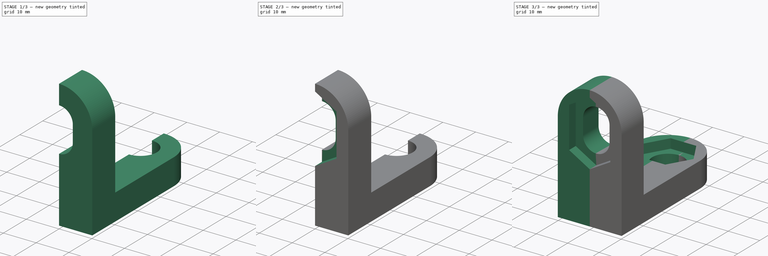
[diagram: build sequence overview — one tinted view per stage of 3, left to right]
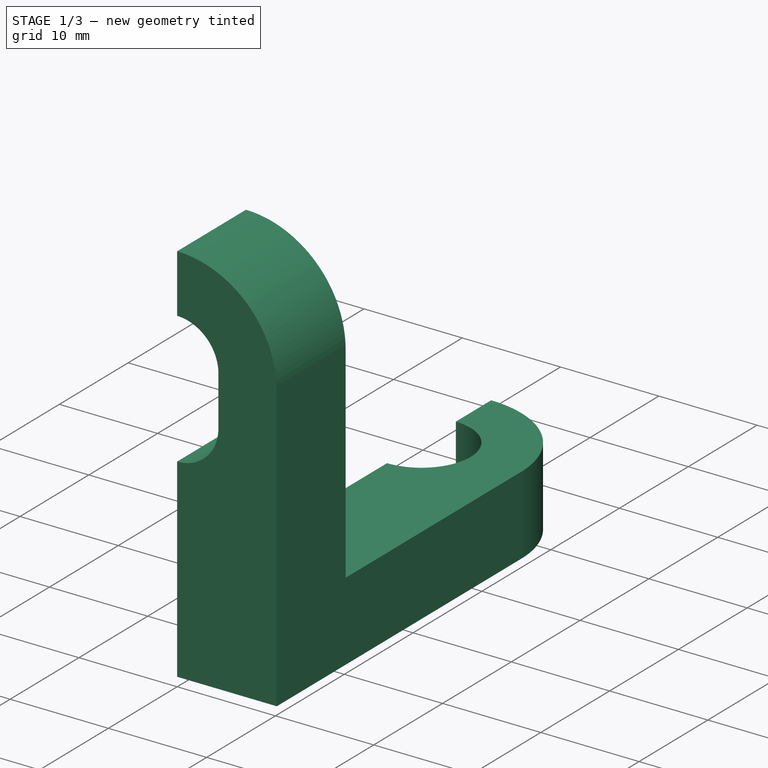
[diagram: stage 1 of 3 — iso view after this stage's code; geometry added in this stage tinted green]
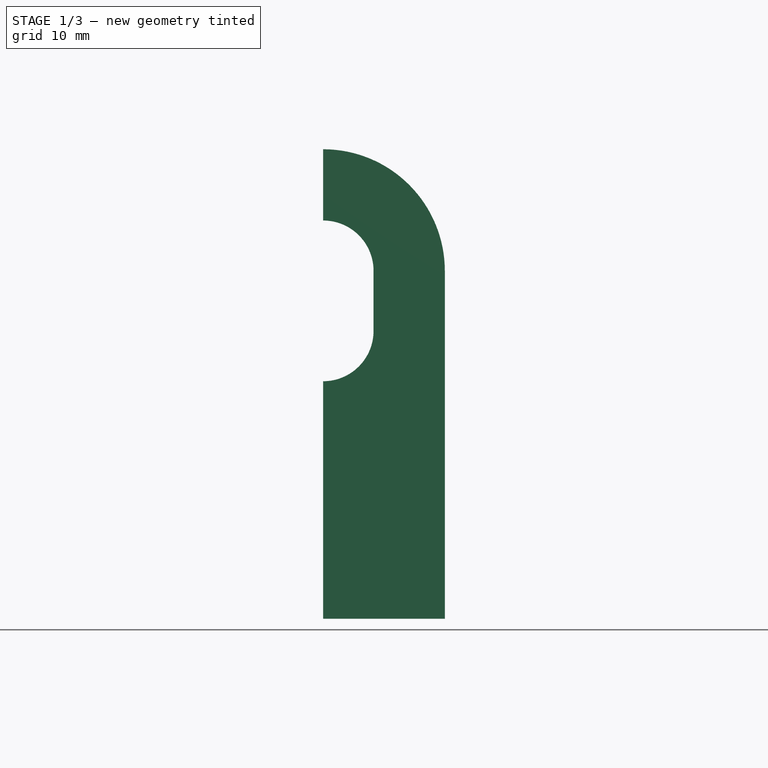
[diagram: stage 1 of 3 — front view after this stage's code; geometry added in this stage tinted green]
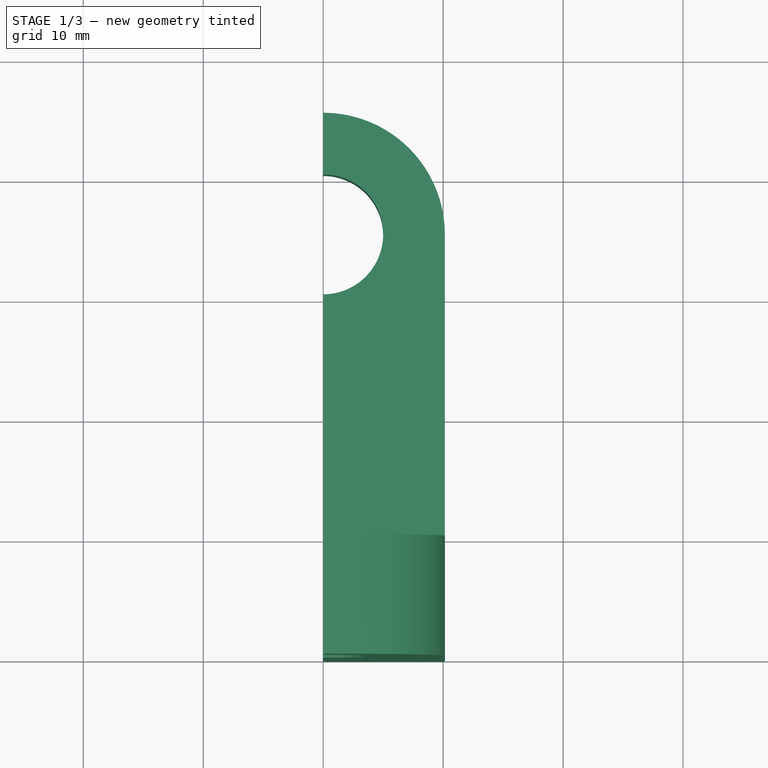
[diagram: stage 1 of 3 — top view after this stage's code; geometry added in this stage tinted green]
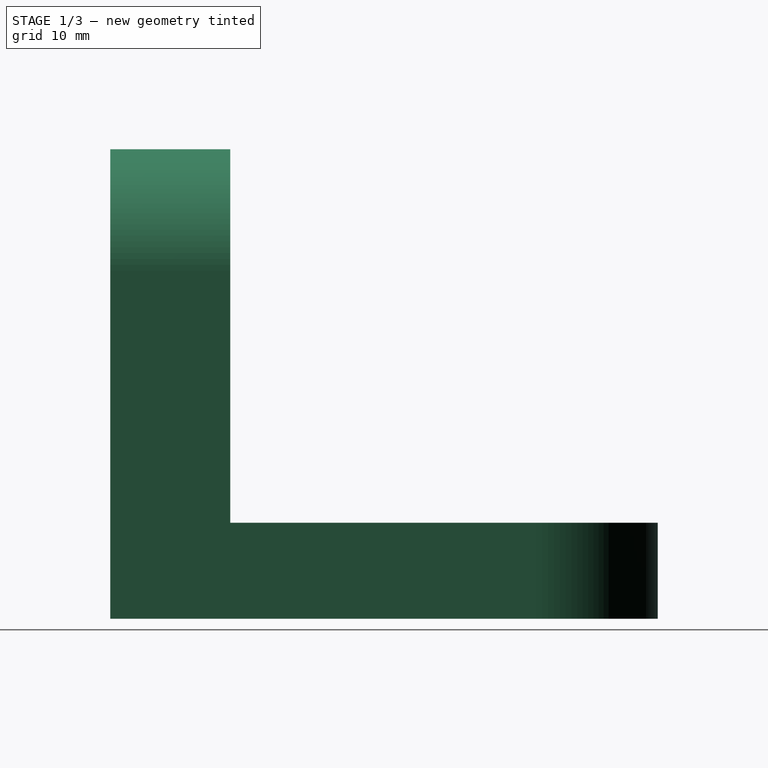
[diagram: stage 1 of 3 — right view after this stage's code; geometry added in this stage tinted green]
FCSTD DOCUMENT  (FreeCAD 0.19R24291 (Git))
Label: ДляПрисосок
License: All rights reserved
LicenseURL: http://en.wikipedia.org/wiki/All_rights_reserved
objects: Sketcher::SketchObject×4, PartDesign::Pad×2, PartDesign::Pocket×2, PartDesign::Mirrored×1, PartDesign::Body×1
note: 14 computed .brp shape members not serialized (recipe doc carries the construction recipe); baked Part::Feature solids carry a one-line shape summary decoded from their .brp

FEATURE [Sketcher::SketchObject] Sketch
  FullyConstrained = true
  MapMode = 5
  Support = -> [XY_Plane]
  sketch-geometry (13):
    g0: ArcOfCircle CenterX=0 CenterY=35.5 CenterZ=0 NormalX=0 NormalY=0 NormalZ=1 AngleXU=0 Radius=5 StartAngle=4.71239 EndAngle=7.85398
    g1: ArcOfCircle CenterX=0 CenterY=35.5 CenterZ=0 NormalX=0 NormalY=0 NormalZ=1 AngleXU=0 Radius=10.1406 StartAngle=6.28318 EndAngle=7.85398
    g2: LineSegment StartX=-9e-16 StartY=30.5 StartZ=0 EndX=0 EndY=0 EndZ=0
    g3: LineSegment StartX=10.1406 StartY=35.5 StartZ=0 EndX=10.1406 EndY=0 EndZ=0
    g4: LineSegment StartX=1.5e-15 StartY=40.5 StartZ=0 EndX=3.1e-15 EndY=45.6406 EndZ=0
    g5: LineSegment StartX=0 StartY=0 StartZ=0 EndX=10.1406 EndY=0 EndZ=0
    g6: LineSegment StartX=0 StartY=43.6406 StartZ=0 EndX=-7.05 EndY=39.5703 EndZ=0
    g7: LineSegment StartX=-7.05 StartY=39.5703 StartZ=0 EndX=-7.05 EndY=31.4297 EndZ=0
    g8: LineSegment StartX=-7.05 StartY=31.4297 StartZ=0 EndX=9e-16 EndY=27.3594 EndZ=0
    g9: LineSegment StartX=9e-16 StartY=27.3594 StartZ=0 EndX=7.05 EndY=31.4297 EndZ=0
    g10: LineSegment StartX=7.05 StartY=31.4297 StartZ=0 EndX=7.05 EndY=39.5703 EndZ=0
    g11: LineSegment StartX=7.05 StartY=39.5703 StartZ=0 EndX=0 EndY=43.6406 EndZ=0
    g12: Circle CenterX=0 CenterY=35.5 CenterZ=0 NormalX=0 NormalY=0 NormalZ=1 AngleXU=0 Radius=8.14064
  constraints (34):
    c: PointOnObject(g0,g-2)
    c: PointOnObject(g0,g-2)
    c: PointOnObject(g0,g-2)
    c: Coincident(g1,g0)
    c: PointOnObject(g1,g-2)
    c: Coincident(g2,g0)
    c: Coincident(g2,g-1)
    c: Coincident(g3,g1)
    c: PointOnObject(g3,g-1)
    c: Vertical(g3)
    c: Tangent(g3,g1)
    c: Coincident(g4,g0)
    c: Coincident(g4,g1)
    c: Coincident(g5,g2)
    c: Coincident(g5,g3)
    c: Coincident(g6,g7)
    c: Coincident(g7,g8)
    c: Coincident(g8,g9)
    c: Coincident(g9,g10)
    c: Coincident(g10,g11)
    c: Coincident(g11,g6)
    c: Equal(g6, g7-g11) x5
    c: PointOnObject(g6,g12)
    c: PointOnObject(g7,g12)
    c: PointOnObject(g8,g12)
    c: PointOnObject(g9,g12)
    c: PointOnObject(g10,g12)
    c: PointOnObject(g11,g12)
    c: Coincident(g12,g0)
    c: PointOnObject(g11,g4)
    c: Distance(g10,g6) = 14.1
    c: Distance(g6,g1) = 2
    c: Distance(g0,g-1) = 35.5
    c: Diameter(g0) = 10
FEATURE [PartDesign::Pad] Pad
  Direction = (1,1,1)
  Length = 8
  Length2 = 100
  Profile = -> Sketch
  Type = 0
FEATURE [Sketcher::SketchObject] Sketch001
  ExternalGeometry = -> [Pad]
  FullyConstrained = true
  MapMode = 5
  Placement = pos=(0,0,0) rot=(1,0,0;1.5708rad)
  Support = -> [Pad]
  sketch-geometry (9):
    g0: ArcOfCircle CenterX=0 CenterY=24 CenterZ=0 NormalX=0 NormalY=0 NormalZ=1 AngleXU=0 Radius=4.2 StartAngle=4.71239 EndAngle=7.85398
    g1: ArcOfCircle CenterX=0 CenterY=29 CenterZ=0 NormalX=0 NormalY=0 NormalZ=1 AngleXU=0 Radius=10.1406 StartAngle=6.28318 EndAngle=7.85398
    g2: LineSegment StartX=10.1406 StartY=8 StartZ=0 EndX=10.1406 EndY=29 EndZ=0
    g3: LineSegment StartX=3.1e-15 StartY=39.1406 StartZ=0 EndX=3e-16 EndY=33.2 EndZ=0
    g4: LineSegment StartX=-8e-16 StartY=19.8 StartZ=0 EndX=0 EndY=8 EndZ=0
    g5: LineSegment StartX=0 StartY=8 StartZ=0 EndX=10.1406 EndY=8 EndZ=0
    g6: ArcOfCircle CenterX=0 CenterY=24 CenterZ=0 NormalX=0 NormalY=0 NormalZ=1 AngleXU=0 Radius=4.2 StartAngle=4.71239 EndAngle=6.28318
    g7: LineSegment StartX=4.2 StartY=24 StartZ=0 EndX=4.2 EndY=29 EndZ=0
    g8: ArcOfCircle CenterX=0 CenterY=29 CenterZ=0 NormalX=0 NormalY=0 NormalZ=1 AngleXU=0 Radius=4.2 StartAngle=3.47299e-06 EndAngle=1.5708
  constraints (27):
    c: PointOnObject(g0,g-2)
    c: PointOnObject(g0,g-2)
    c: PointOnObject(g0,g-2)
    c: PointOnObject(g1,g-2)
    c: Coincident(g2,g-3)
    c: Coincident(g2,g1)
    c: Vertical(g2)
    c: Tangent(g2,g1)
    c: Coincident(g3,g1)
    c: Coincident(g4,g0)
    c: Coincident(g4,g-3)
    c: Coincident(g5,g4)
    c: Coincident(g5,g2)
    c: Diameter(g0) = 8.4
    c: Distance(g0,g-1) = 24
    c: Coincident(g6,g0)
    c: Coincident(g6,g4)
    c: Coincident(g7,g6)
    c: Tangent(g7,g0)
    c: Coincident(g8,g1)
    c: Coincident(g8,g7)
    c: Coincident(g8,g3)
    c: PointOnObject(g1,g-2)
    c: PointOnObject(g3,g-2)
    c: Tangent(g8,g7)
    c: Vertical(g7)
    c: Distance(g7) = 5
FEATURE [PartDesign::Pad] Pad001
  BaseFeature = -> Pad
  Direction = (1,1,1)
  Length = 10
  Length2 = 100
  Profile = -> Sketch001
  Reversed = true
  Type = 0
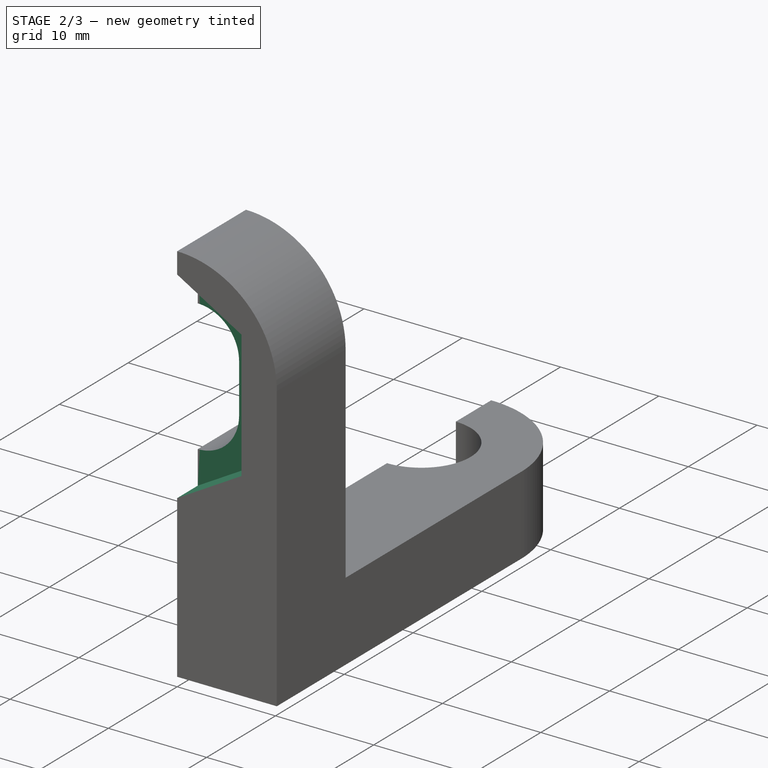
[diagram: stage 2 of 3 — iso view after this stage's code; geometry added in this stage tinted green]
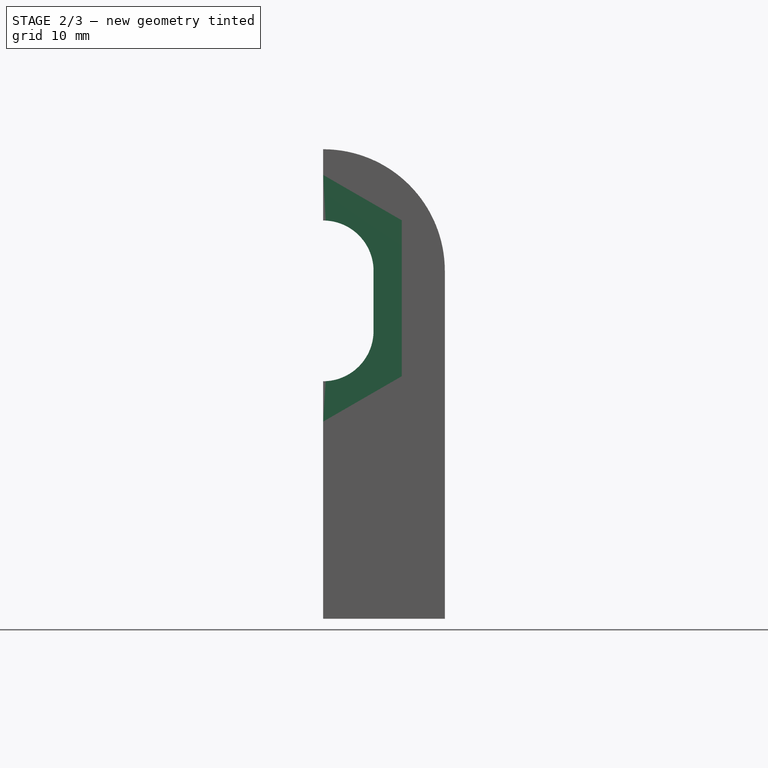
[diagram: stage 2 of 3 — front view after this stage's code; geometry added in this stage tinted green]
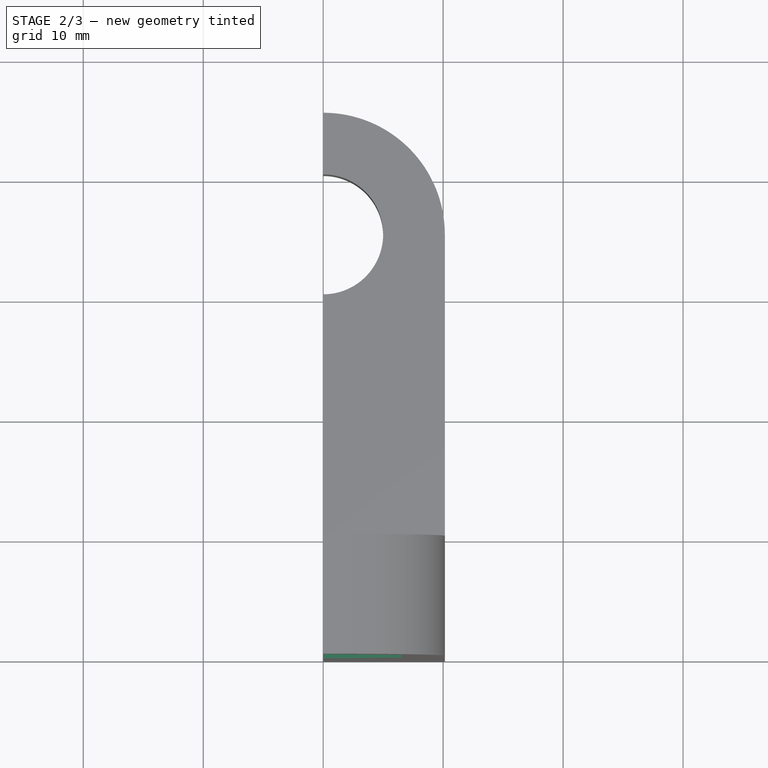
[diagram: stage 2 of 3 — top view after this stage's code; geometry added in this stage tinted green]
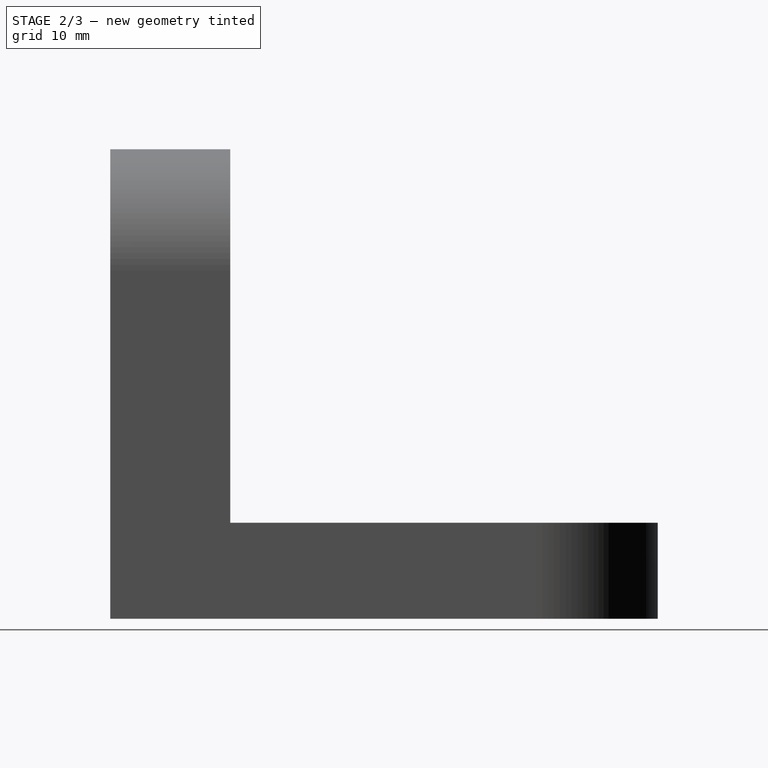
[diagram: stage 2 of 3 — right view after this stage's code; geometry added in this stage tinted green]
FEATURE [Sketcher::SketchObject] Sketch002
  FullyConstrained = true
  MapMode = 5
  Placement = pos=(0,0,0) rot=(1,0,0;1.5708rad)
  Support = -> [Pad001]
  sketch-geometry (10):
    g0: LineSegment StartX=0 StartY=31.5633 StartZ=0 EndX=-6.55 EndY=27.7816 EndZ=0
    g1: LineSegment StartX=-6.55 StartY=27.7816 StartZ=0 EndX=-6.55 EndY=20.2184 EndZ=0
    g2: LineSegment StartX=-6.55 StartY=20.2184 StartZ=0 EndX=0 EndY=16.4367 EndZ=0
    g3: LineSegment StartX=0 StartY=16.4367 StartZ=0 EndX=6.55 EndY=20.2184 EndZ=0
    g4: LineSegment StartX=6.55 StartY=20.2184 StartZ=0 EndX=6.55 EndY=27.7816 EndZ=0
    g5: LineSegment StartX=6.55 StartY=27.7816 StartZ=0 EndX=0 EndY=31.5633 EndZ=0
    g6: Circle CenterX=0 CenterY=24 CenterZ=0 NormalX=0 NormalY=0 NormalZ=1 AngleXU=0 Radius=7.56329
    g7: LineSegment StartX=6.55 StartY=20.2184 StartZ=0 EndX=6.55 EndY=33.2184 EndZ=0
    g8: LineSegment StartX=6.55 StartY=33.2184 StartZ=0 EndX=0 EndY=37 EndZ=0
    g9: LineSegment StartX=0 StartY=37 StartZ=0 EndX=0 EndY=16.4367 EndZ=0
  constraints (27):
    c: Coincident(g0,g1)
    c: Coincident(g1,g2)
    c: Coincident(g2,g3)
    c: Coincident(g3,g4)
    c: Coincident(g4,g5)
    c: Coincident(g5,g0)
    c: Equal(g0, g1-g5) x5
    c: PointOnObject(g0,g6)
    c: PointOnObject(g1,g6)
    c: PointOnObject(g2,g6)
    c: PointOnObject(g3,g6)
    c: PointOnObject(g4,g6)
    c: PointOnObject(g5,g6)
    c: Distance(g4,g5) = 13.1
    c: Distance(g6,g-1) = 24
    c: Vertical(g1)
    c: PointOnObject(g6,g-2)
    c: Coincident(g7,g3)
    c: Vertical(g7)
    c: Coincident(g8,g7)
    c: PointOnObject(g8,g-2)
    c: Parallel(g8,g5)
    c: Distance(g1) = 7.56329
    c: Distance(g7) = 13
    c: Distance(g4,g7) = 5.43671
    c: Coincident(g9,g8)
    c: Coincident(g9,g3)
FEATURE [PartDesign::Pocket] Pocket
  BaseFeature = -> Pad001
  Length = 3
  Length2 = 100
  Profile = -> Sketch002
  Type = 0
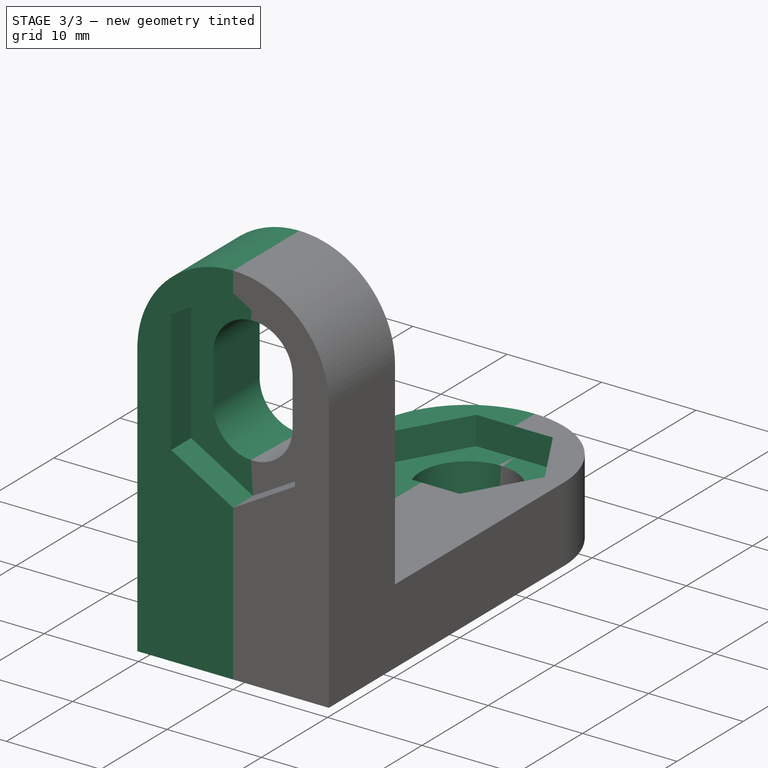
[diagram: stage 3 of 3 — iso view after this stage's code; geometry added in this stage tinted green]
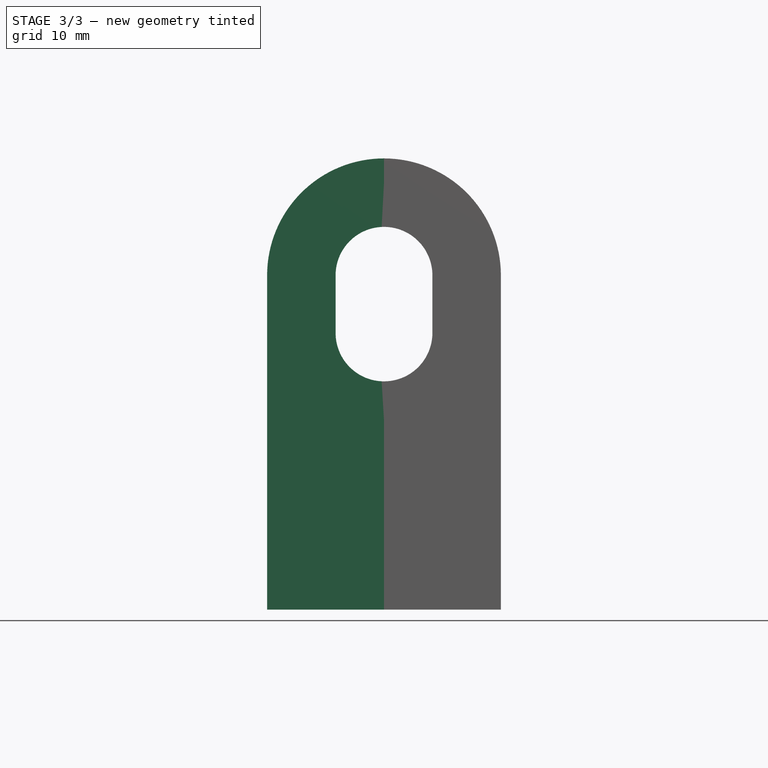
[diagram: stage 3 of 3 — front view after this stage's code; geometry added in this stage tinted green]
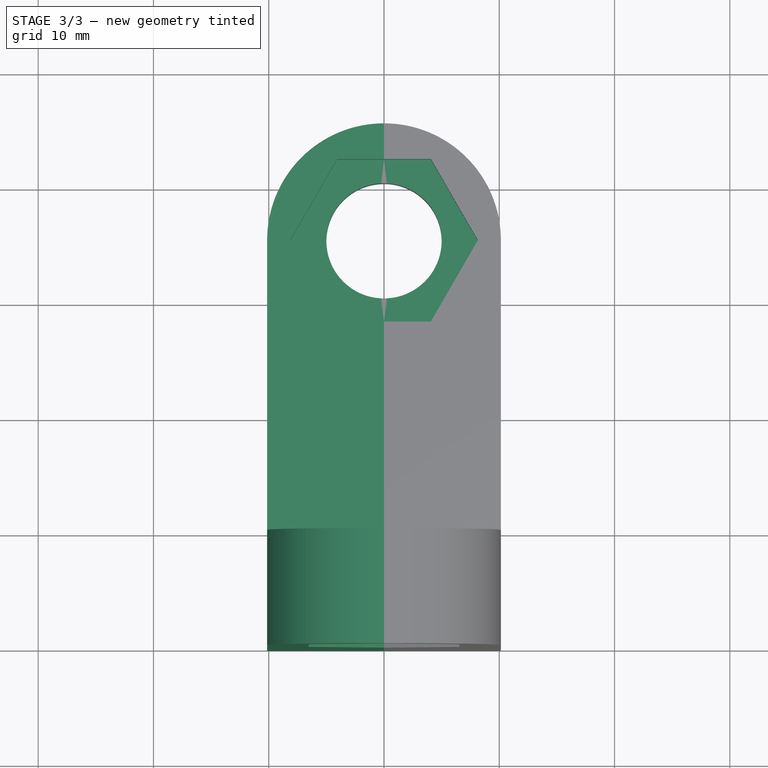
[diagram: stage 3 of 3 — top view after this stage's code; geometry added in this stage tinted green]
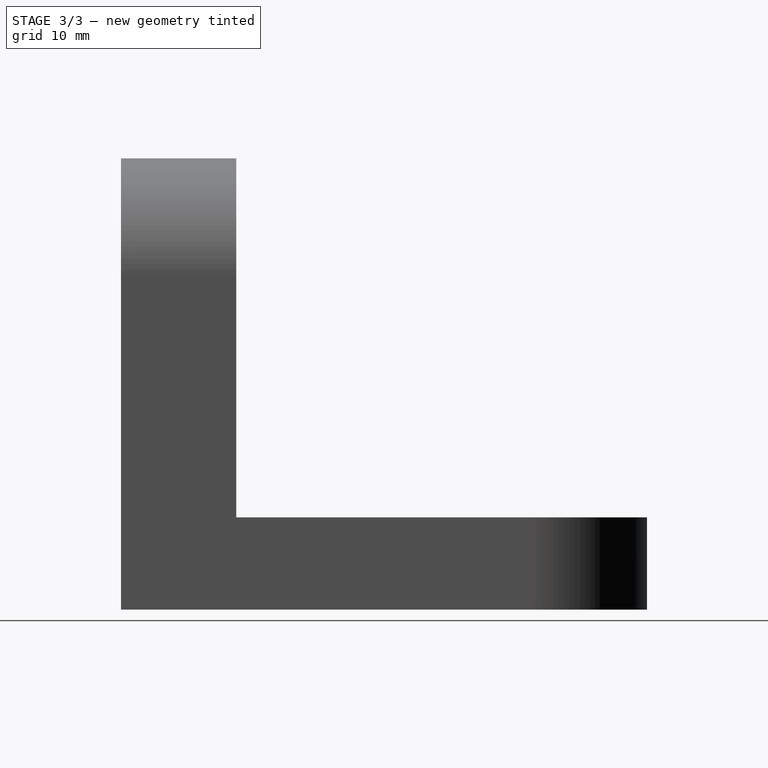
[diagram: stage 3 of 3 — right view after this stage's code; geometry added in this stage tinted green]
FEATURE [Sketcher::SketchObject] Sketch003
  ExternalGeometry = -> [Pocket]
  FullyConstrained = true
  MapMode = 5
  Placement = pos=(0,0,8) rot=(0,0,1;0rad)
  Support = -> [Pocket]
  sketch-geometry (10):
    g0: LineSegment StartX=4.07032 StartY=42.55 StartZ=0 EndX=-4.07032 EndY=42.55 EndZ=0
    g1: LineSegment StartX=-4.07032 StartY=42.55 StartZ=0 EndX=-8.14064 EndY=35.5 EndZ=0
    g2: LineSegment StartX=-8.14064 StartY=35.5 StartZ=0 EndX=-4.07032 EndY=28.45 EndZ=0
    g3: LineSegment StartX=-4.07032 StartY=28.45 StartZ=0 EndX=4.07032 EndY=28.45 EndZ=0
    g4: LineSegment StartX=4.07032 StartY=28.45 StartZ=0 EndX=8.14064 EndY=35.5 EndZ=0
    g5: LineSegment StartX=8.14064 StartY=35.5 StartZ=0 EndX=4.07032 EndY=42.55 EndZ=0
    g6: Circle CenterX=0 CenterY=35.5 CenterZ=0 NormalX=0 NormalY=0 NormalZ=1 AngleXU=0 Radius=8.14064
    g7: LineSegment StartX=4.07032 StartY=42.55 StartZ=0 EndX=0 EndY=42.55 EndZ=0
    g8: LineSegment StartX=4.07032 StartY=28.45 StartZ=0 EndX=0 EndY=28.45 EndZ=0
    g9: LineSegment StartX=0 StartY=42.55 StartZ=0 EndX=0 EndY=28.45 EndZ=0
  constraints (24):
    c: Coincident(g0,g1)
    c: Coincident(g1,g2)
    c: Coincident(g2,g3)
    c: Coincident(g3,g4)
    c: Coincident(g4,g5)
    c: Coincident(g5,g0)
    c: Equal(g0, g1-g5) x5
    c: PointOnObject(g0,g6)
    c: PointOnObject(g1,g6)
    c: PointOnObject(g2,g6)
    c: PointOnObject(g3,g6)
    c: PointOnObject(g4,g6)
    c: PointOnObject(g5,g6)
    c: Coincident(g6,g-3)
    c: Coincident(g7,g5)
    c: PointOnObject(g7,g-2)
    c: Horizontal(g7)
    c: Coincident(g8,g4)
    c: PointOnObject(g8,g-2)
    c: Horizontal(g8)
    c: Horizontal(g3)
    c: Distance(g4,g5) = 14.1
    c: Coincident(g9,g7)
    c: Coincident(g9,g8)
FEATURE [PartDesign::Pocket] Pocket001
  BaseFeature = -> Pocket
  Length = 3
  Length2 = 100
  Profile = -> Sketch003
  Type = 0
FEATURE [PartDesign::Mirrored] Mirrored
  BaseFeature = -> Pocket001
  MirrorPlane = -> Sketch [V_Axis]
  Originals = -> [Pad,Pad001,Pocket,Pocket001]
FEATURE [PartDesign::Body] Body
  Group = -> [Sketch,Pad,Sketch001,Pad001,Sketch002,Pocket,Sketch003,Pocket001,Mirrored]
  Origin = -> Origin
  Tip = -> Mirrored
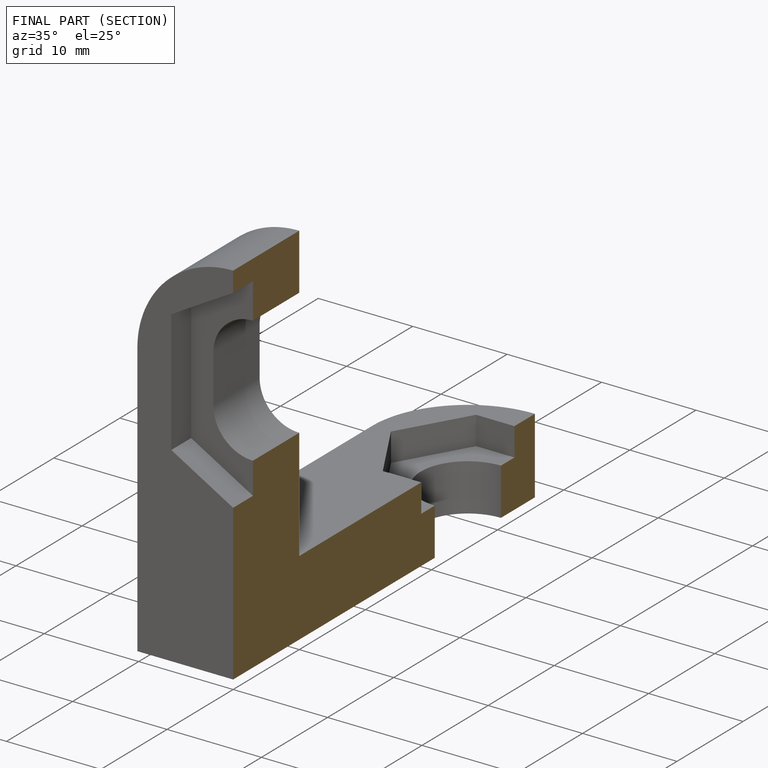
[diagram: finished part — half-section view (interior)]
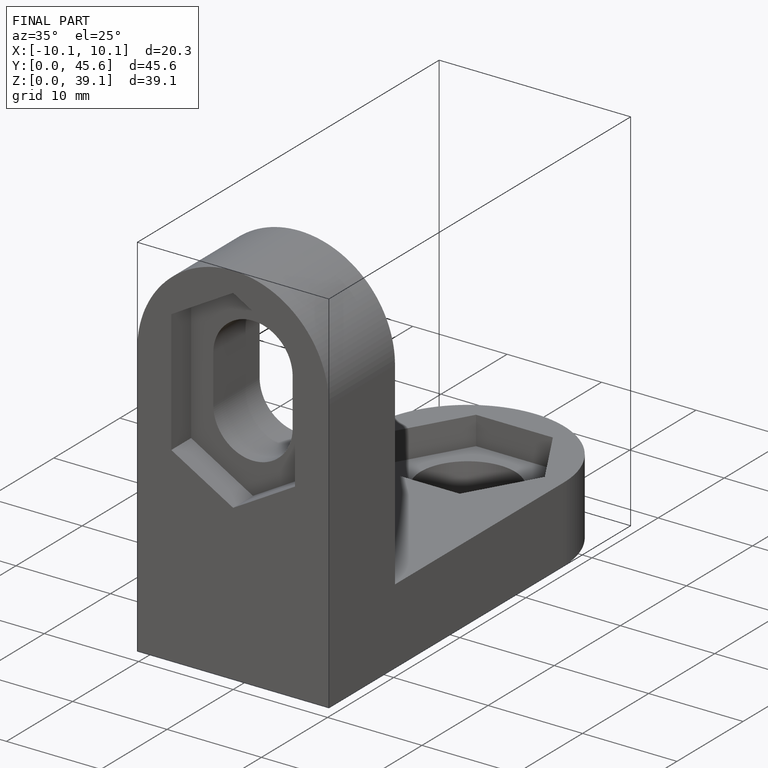
[diagram: finished part — iso view with bounding-box wireframe]
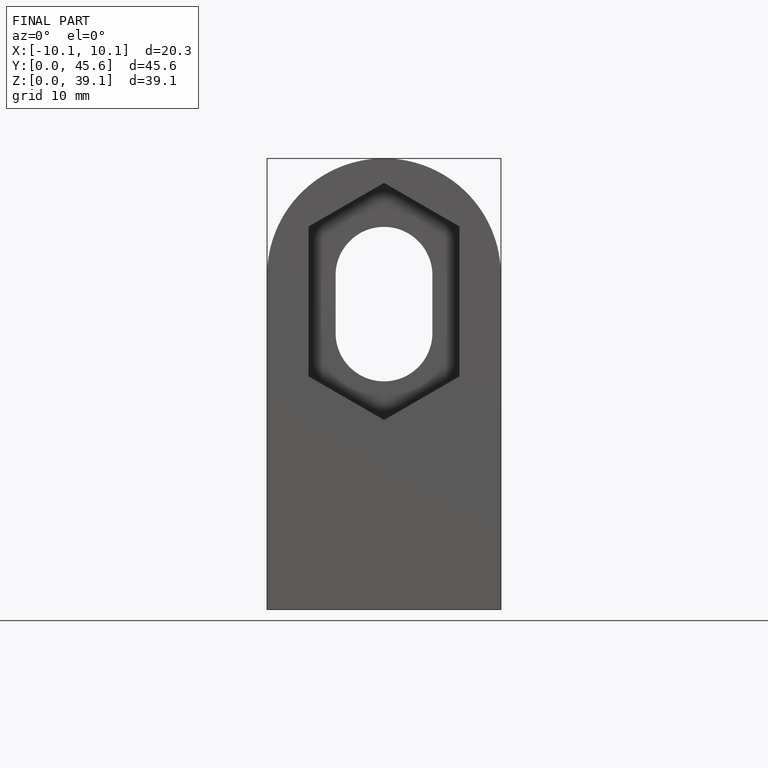
[diagram: finished part — front view with bounding-box wireframe]
